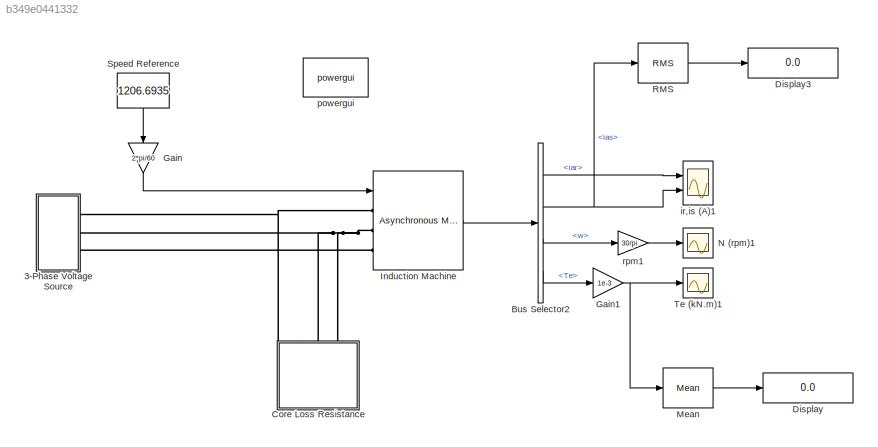
MODEL slx_b349e0441332
KIND model
CONFIG AbsTol = auto
CONFIG EnableMultiTasking = off
CONFIG FixedStep = 1e-5
CONFIG InitFcn = %% 1x3 rmxprt model circuit parameters\nR1=0.000789831;\nX1=0.0126978;\nR2=0.00052717;\nX2=0.0112829;\nRc=22.2001;\nXm=0.359696;\n\n%% Enhanced 2x3 model circuit parameters\nR1a=2*R1;\nX1a=2*X1;\nR2a=2*R2/0.933;\nX2a=2*X2/0.933;\nRca=2*Rc/0.9659;\nXma=2*Xm/0.9659;\n\n%% Other Parameters\nPower=4300e3;\nTorque=34500;\npole=6;\npp=pole/2;\nVll=700; \nf=60;\nJm=242.28;\n\n\n%% Inductances\nL1=X1/2/pi/f;\nL2=X2/2/pi/f;\nLm=Xm/2/p...<+54ch>
CONFIG MaxStep = auto
CONFIG MinStep = auto
CONFIG RelTol = 1e-3
CONFIG SampleTimeConstraint = Unconstrained
CONFIG SolverName = FixedStepAuto
CONFIG StartTime = 0.0
CONFIG StopTime = 10
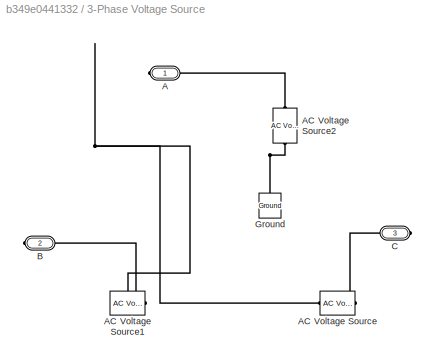
BLOCK [SubSystem] 3-Phase Voltage Source
  Ports = [0, 0, 0, 0, 0, 0, 3]
  RequestExecContextInheritance = off
BLOCK [PMIOPort] 3-Phase Voltage Source/A
  Side = Right
BLOCK [Reference] 3-Phase Voltage Source/AC Voltage Source  REF=spsACVoltageSourceLib/AC Voltage Source
  NameLocation = left
  Ports = [0, 0, 0, 0, 0, 1, 1]
  SourceBlock = spsACVoltageSourceLib/AC Voltage Source
  SourceProductBaseCode = PS
  SourceType = AC Voltage Source
BLOCK [Reference] 3-Phase Voltage Source/AC Voltage Source1  REF=spsACVoltageSourceLib/AC Voltage Source
  NameLocation = right
  Ports = [0, 0, 0, 0, 0, 1, 1]
  SourceBlock = spsACVoltageSourceLib/AC Voltage Source
  SourceProductBaseCode = PS
  SourceType = AC Voltage Source
BLOCK [Reference] 3-Phase Voltage Source/AC Voltage Source2  REF=spsACVoltageSourceLib/AC Voltage Source
  Ports = [0, 0, 0, 0, 0, 1, 1]
  SourceBlock = spsACVoltageSourceLib/AC Voltage Source
  SourceProductBaseCode = PS
  SourceType = AC Voltage Source
BLOCK [PMIOPort] 3-Phase Voltage Source/B
  Port = 2
  Side = Right
BLOCK [PMIOPort] 3-Phase Voltage Source/C
  Port = 3
  Side = Right
BLOCK [Reference] 3-Phase Voltage Source/Ground  REF=spsGroundLib/Ground
  NameLocation = right
  Ports = [0, 0, 0, 0, 0, 1]
  SourceBlock = spsGroundLib/Ground
  SourceProductBaseCode = PS
  SourceType = Ground
BLOCK [BusSelector] Bus Selector2
  OutputSignals = iar,ias,w,Te
  Ports = [1, 4]
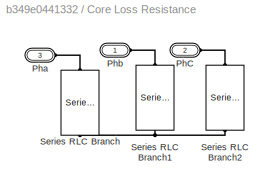
BLOCK [SubSystem] Core Loss Resistance
  NameLocation = left
  Ports = [0, 0, 0, 0, 0, 3]
  RequestExecContextInheritance = off
BLOCK [PMIOPort] Core Loss Resistance/PhC
  Port = 2
  Side = Left
BLOCK [PMIOPort] Core Loss Resistance/Pha
  Port = 3
  Side = Left
BLOCK [PMIOPort] Core Loss Resistance/Phb
  Side = Left
BLOCK [Reference] Core Loss Resistance/Series RLC Branch  REF=spsSeriesRLCBranchLib/Series RLC Branch
  NameLocation = left
  Ports = [0, 0, 0, 0, 0, 1, 1]
  SourceBlock = spsSeriesRLCBranchLib/Series RLC Branch
  SourceProductBaseCode = PS
  SourceType = Series RLC Branch
BLOCK [Reference] Core Loss Resistance/Series RLC Branch1  REF=spsSeriesRLCBranchLib/Series RLC Branch
  NameLocation = left
  Ports = [0, 0, 0, 0, 0, 1, 1]
  SourceBlock = spsSeriesRLCBranchLib/Series RLC Branch
  SourceProductBaseCode = PS
  SourceType = Series RLC Branch
BLOCK [Reference] Core Loss Resistance/Series RLC Branch2  REF=spsSeriesRLCBranchLib/Series RLC Branch
  NameLocation = left
  Ports = [0, 0, 0, 0, 0, 1, 1]
  SourceBlock = spsSeriesRLCBranchLib/Series RLC Branch
  SourceProductBaseCode = PS
  SourceType = Series RLC Branch
BLOCK [Display] Display
  Decimation = 1
  Format = long
  Ports = [1]
BLOCK [Display] Display3
  Decimation = 1
  Format = long
  Ports = [1]
BLOCK [Gain] Gain
  Gain = 2*pi/60
  NameLocation = left
BLOCK [Gain] Gain1
  Gain = 1e-3
BLOCK [Reference] Induction Machine  REF=spsAsynchronousMachineSIUnitsLib/Asynchronous Machine
SI Units
  AttributesFormatString = \n
  Ports = [1, 1, 0, 0, 0, 3]
  SourceBlock = spsAsynchronousMachineSIUnitsLib/Asynchronous Machine\nSI Units
  SourceProductBaseCode = PS
  SourceType = Asynchronous Machine
BLOCK [Reference] Mean  REF=spsMeanLib/Mean
  Ports = [1, 1]
  SourceBlock = spsMeanLib/Mean
  SourceProductBaseCode = PS
  SourceType = Mean
BLOCK [Scope] N (rpm)1
  Floating = off
  NameLocation = top
  NumInputPorts = 1
  Ports = [1]
  ScopeSpecificationString = Simulink.scopes.TimeScopeBlockCfg('CurrentConfiguration', extmgr.ConfigurationSet(extmgr.Configuration('Core','General UI',true,'FigureColor',[1 1 1]),extmgr.Configuration('Core','Source UI',true),extmgr.Configuration('Sources','WiredSimulink',true,'DataLoggingSaveFormat','Array','DataLoggingDecimation','1','DataLoggingDecimateData',true),extmgr.Configuration('Visuals','Time Domain',true,'Serializ...<+1746ch>
BLOCK [Reference] RMS  REF=spsRMSLib/RMS
  Ports = [1, 1]
  SourceBlock = spsRMSLib/RMS
  SourceProductBaseCode = PS
  SourceType = RMS
BLOCK [Constant] Speed Reference
  NameLocation = left
  Value = 1206.6935
BLOCK [Scope] Te (kN.m)1
  Floating = off
  NumInputPorts = 1
  Ports = [1]
  ScopeSpecificationString = Simulink.scopes.TimeScopeBlockCfg('CurrentConfiguration', extmgr.ConfigurationSet(extmgr.Configuration('Core','General UI',true,'FigureColor',[1 1 1]),extmgr.Configuration('Core','Source UI',true),extmgr.Configuration('Sources','WiredSimulink',true,'DataLoggingSaveFormat','Array','DataLoggingDecimation','1','DataLoggingDecimateData',true,'DataLoggingVariableName','ScopeData1'),extmgr.Configuration...<+1806ch>
BLOCK [Scope] ir,is (A)1
  Floating = off
  NameLocation = top
  NumInputPorts = 2
  Ports = [2]
  ScopeSpecificationString = Simulink.scopes.TimeScopeBlockCfg('CurrentConfiguration', extmgr.ConfigurationSet(extmgr.Configuration('Core','General UI',true,'FigureColor',[1 1 1]),extmgr.Configuration('Core','Source UI',true),extmgr.Configuration('Sources','WiredSimulink',true,'DataLoggingSaveFormat','Array','DataLoggingDecimation','1','DataLoggingDecimateData',true,'DataLoggingVariableName','ScopeData2'),extmgr.Configuration...<+2610ch>
BLOCK [Reference] powergui  REF=spspowerguiLib/powergui
  Ports = []
  SourceBlock = spspowerguiLib/powergui
  SourceProductBaseCode = PS
  SourceType = PSB option menu block
BLOCK [Gain] rpm1
  Gain = 30/pi
  OutDataTypeStr = Inherit: Same as input
  ParamDataTypeStr = Inherit: Same as input
  SaturateOnIntegerOverflow = on
LINE Bus Selector2:1 -> ir,is (A)1:1
NET Bus Selector2:2 -> RMS:1, ir,is (A)1:2
LINE Bus Selector2:3 -> rpm1:1
LINE Bus Selector2:4 -> Gain1:1
NET Gain1:1 -> Mean:1, Te (kN.m)1:1
LINE Gain:1 -> Induction Machine:1
LINE Induction Machine:1 -> Bus Selector2:1
LINE Mean:1 -> Display:1
LINE RMS:1 -> Display3:1
LINE Speed Reference:1 -> Gain:1
LINE rpm1:1 -> N (rpm)1:1
PLINE 3-Phase Voltage Source/A:RConn1 -- 3-Phase Voltage Source/AC Voltage Source2:RConn1
PNET net1: 3-Phase Voltage Source/AC Voltage Source1:LConn1 -- 3-Phase Voltage Source/AC Voltage Source2:LConn1 -- 3-Phase Voltage Source/AC Voltage Source:LConn1 -- 3-Phase Voltage Source/Ground:LConn1
PLINE 3-Phase Voltage Source/AC Voltage Source1:RConn1 -- 3-Phase Voltage Source/B:RConn1
PLINE 3-Phase Voltage Source/AC Voltage Source:RConn1 -- 3-Phase Voltage Source/C:RConn1
PNET net2: 3-Phase Voltage Source:RConn1 -- Core Loss Resistance:LConn1 -- Induction Machine:LConn1
PNET net3: 3-Phase Voltage Source:RConn2 -- Core Loss Resistance:LConn2 -- Core Loss Resistance:LConn3 -- Induction Machine:LConn2
PLINE 3-Phase Voltage Source:RConn3 -- Induction Machine:LConn3
PLINE Core Loss Resistance/PhC:RConn1 -- Core Loss Resistance/Series RLC Branch2:LConn1
PLINE Core Loss Resistance/Pha:RConn1 -- Core Loss Resistance/Series RLC Branch:LConn1
PLINE Core Loss Resistance/Phb:RConn1 -- Core Loss Resistance/Series RLC Branch1:LConn1
PNET net4: Core Loss Resistance/Series RLC Branch1:RConn1 -- Core Loss Resistance/Series RLC Branch2:RConn1 -- Core Loss Resistance/Series RLC Branch:RConn1
note: NET lines group one-source signal fan-out (src -> all destinations, sorted); 1:1 wires keep LINE; PNET lines group multi-terminal physical nets as a canonical sorted terminal list (undirected conserving connections); 2-terminal nets keep the pairwise PLINE form
